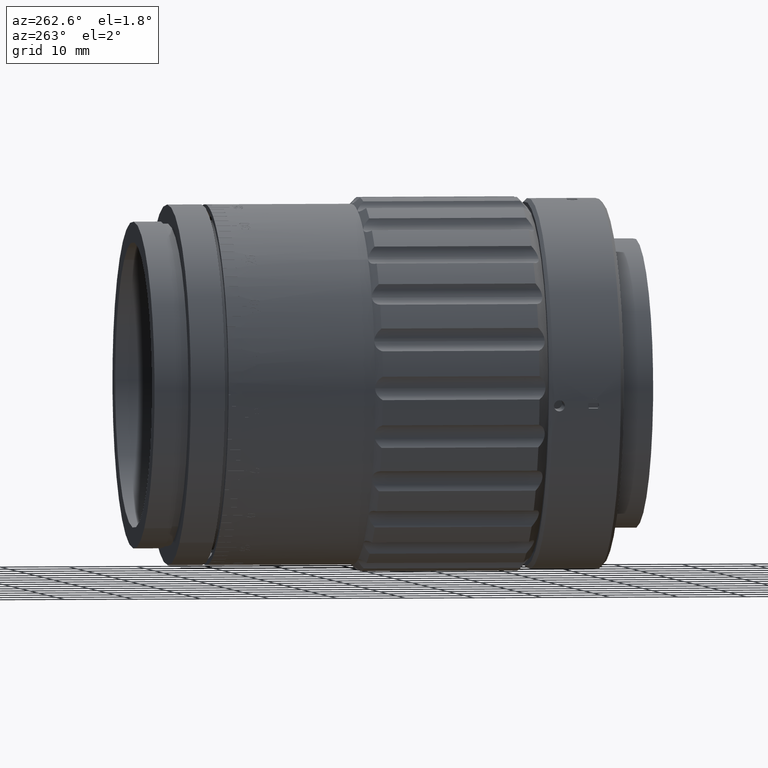
[diagram: clean part render]
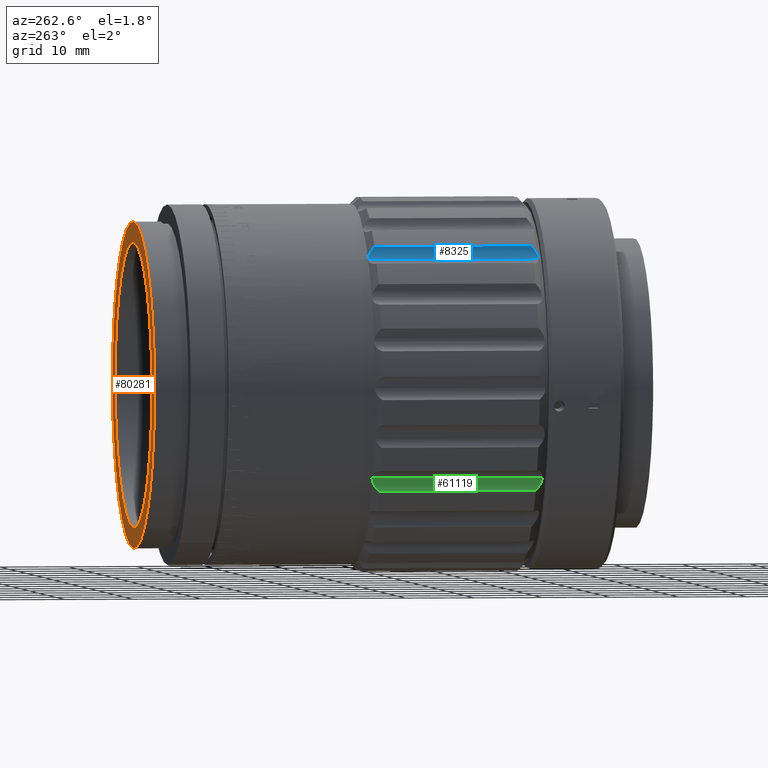
[diagram: same view with three faces highlighted in distinct colors, each labeled with its STEP entity id]
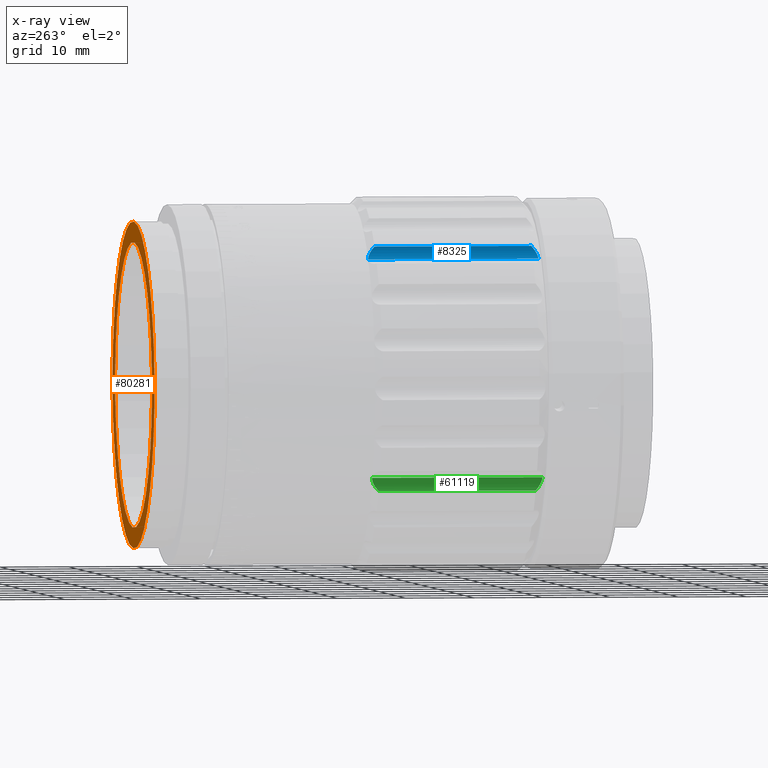
[diagram: x-ray of the same camera — body ghosted, the three highlighted faces saturated]
A machine part, auxiliary view with three faces highlighted in distinct colors.
The next image is the same camera in x-ray (body ghosted, the three faces saturated) — at least one of them is partly hidden behind the body in this view.
Their STEP definitions:

[orange] entity #80281 — the highlighted planar face has unit normal (0, -1, -0).
#255 = CARTESIAN_POINT ( 'NONE',  ( 0.0000000000000000000, 23.51240201808208500, 0.0000000000000000000 ) ) ;
#933 = AXIS2_PLACEMENT_3D ( 'NONE', #62447, #29219, #42607 ) ;
#2563 = DIRECTION ( 'NONE',  ( -0.0000000000000000000, 1.000000000000000000, -0.0000000000000000000 ) ) ;
#4936 = EDGE_CURVE ( 'NONE', #29207, #48466, #78331, .T. ) ;
#5630 = DIRECTION ( 'NONE',  ( 0.0000000000000000000, -0.0000000000000000000, -1.000000000000000000 ) ) ;
#7617 = ORIENTED_EDGE ( 'NONE', *, *, #4936, .T. ) ;
#7698 = DIRECTION ( 'NONE',  ( 0.0000000000000000000, 0.0000000000000000000, 1.000000000000000000 ) ) ;
#11805 = ORIENTED_EDGE ( 'NONE', *, *, #69631, .F. ) ;
#12351 = PLANE ( 'NONE',  #17973 ) ;
#14138 = CARTESIAN_POINT ( 'NONE',  ( 0.0000000000000000000, 23.51240201808208500, 23.80000000000000100 ) ) ;
#17973 = AXIS2_PLACEMENT_3D ( 'NONE', #19075, #39137, #5630 ) ;
#19075 = CARTESIAN_POINT ( 'NONE',  ( 20.80000000000000100, 23.51240201808208500, 0.0000000000000000000 ) ) ;
#19314 = EDGE_CURVE ( 'NONE', #48466, #29207, #26604, .T. ) ;
#24958 = CARTESIAN_POINT ( 'NONE',  ( 2.914659381970700800E-015, 23.51240201808208500, -23.80000000000000100 ) ) ;
#26604 = CIRCLE ( 'NONE', #43060, 23.80000000000000100 ) ;
#28804 = EDGE_LOOP ( 'NONE', ( #44839, #7617 ) ) ;
#29207 = VERTEX_POINT ( 'NONE', #24958 ) ;
#29219 = DIRECTION ( 'NONE',  ( -0.0000000000000000000, 1.000000000000000000, -0.0000000000000000000 ) ) ;
#30566 = EDGE_CURVE ( 'NONE', #68890, #39494, #57217, .T. ) ;
#34230 = FACE_OUTER_BOUND ( 'NONE', #28804, .T. ) ;
#39137 = DIRECTION ( 'NONE',  ( 0.0000000000000000000, -1.000000000000000000, 0.0000000000000000000 ) ) ;
#39494 = VERTEX_POINT ( 'NONE', #43313 ) ;
#42607 = DIRECTION ( 'NONE',  ( 0.0000000000000000000, 0.0000000000000000000, 1.000000000000000000 ) ) ;
#43060 = AXIS2_PLACEMENT_3D ( 'NONE', #82460, #2563, #76927 ) ;
#43313 = CARTESIAN_POINT ( 'NONE',  ( 2.547265342226494600E-015, 23.51240201808208500, -20.80000000000000100 ) ) ;
#44839 = ORIENTED_EDGE ( 'NONE', *, *, #19314, .T. ) ;
#45359 = EDGE_LOOP ( 'NONE', ( #64859, #11805 ) ) ;
#45707 = FACE_BOUND ( 'NONE', #45359, .T. ) ;
#46614 = DIRECTION ( 'NONE',  ( 0.0000000000000000000, 0.0000000000000000000, 1.000000000000000000 ) ) ;
#48466 = VERTEX_POINT ( 'NONE', #14138 ) ;
#53048 = DIRECTION ( 'NONE',  ( -0.0000000000000000000, 1.000000000000000000, -0.0000000000000000000 ) ) ;
#57217 = CIRCLE ( 'NONE', #71377, 20.80000000000000100 ) ;
#60319 = CIRCLE ( 'NONE', #933, 20.80000000000000100 ) ;
#60747 = CARTESIAN_POINT ( 'NONE',  ( 0.0000000000000000000, 23.51240201808208500, 0.0000000000000000000 ) ) ;
#62447 = CARTESIAN_POINT ( 'NONE',  ( 0.0000000000000000000, 23.51240201808208500, 0.0000000000000000000 ) ) ;
#64859 = ORIENTED_EDGE ( 'NONE', *, *, #30566, .F. ) ;
#67781 = DIRECTION ( 'NONE',  ( -0.0000000000000000000, 1.000000000000000000, -0.0000000000000000000 ) ) ;
#68890 = VERTEX_POINT ( 'NONE', #78774 ) ;
#69631 = EDGE_CURVE ( 'NONE', #39494, #68890, #60319, .T. ) ;
#71377 = AXIS2_PLACEMENT_3D ( 'NONE', #60747, #67781, #7698 ) ;
#76927 = DIRECTION ( 'NONE',  ( 0.0000000000000000000, 0.0000000000000000000, 1.000000000000000000 ) ) ;
#78331 = CIRCLE ( 'NONE', #86186, 23.80000000000000100 ) ;
#78774 = CARTESIAN_POINT ( 'NONE',  ( 0.0000000000000000000, 23.51240201808208500, 20.80000000000000100 ) ) ;
#80281 = ADVANCED_FACE ( 'NONE', ( #45707, #34230 ), #12351, .F. ) ;
#82460 = CARTESIAN_POINT ( 'NONE',  ( 0.0000000000000000000, 23.51240201808208500, 0.0000000000000000000 ) ) ;
#86186 = AXIS2_PLACEMENT_3D ( 'NONE', #255, #53048, #46614 ) ;

[blue] entity #8325 — the highlighted cylindrical surface (edge-blend (fillet) strip) has radius 2 mm, axis along (0, -1, -0).
#1863 = DIRECTION ( 'NONE',  ( -0.0000000000000000000, 1.000000000000000000, -0.0000000000000000000 ) ) ;
#1937 = FACE_OUTER_BOUND ( 'NONE', #51481, .T. ) ;
#3516 = CARTESIAN_POINT ( 'NONE',  ( -0.7385986106700723800, -28.06509218753952000, -26.38927186816556900 ) ) ;
#5706 = EDGE_CURVE ( 'NONE', #10013, #21836, #62856, .T. ) ;
#6532 = CARTESIAN_POINT ( 'NONE',  ( -0.9007847797406943700, -3.441932837596963300, -26.46214698488492400 ) ) ;
#8325 = ADVANCED_FACE ( 'NONE', ( #1937 ), #68743, .F. ) ;
#9551 = LINE ( 'NONE', #37076, #41811 ) ;
#9660 = CARTESIAN_POINT ( 'NONE',  ( 3.214687295059312000E-015, -28.21457821189758900, -26.25000000000006800 ) ) ;
#9959 = CARTESIAN_POINT ( 'NONE',  ( -0.1922822055155233600, -28.21457821189758900, -26.25000000000007500 ) ) ;
#10013 = VERTEX_POINT ( 'NONE', #79699 ) ;
#12393 = CARTESIAN_POINT ( 'NONE',  ( -1.700289969879913900, -4.214578211897617200, -27.19690265486725900 ) ) ;
#18148 = LINE ( 'NONE', #48783, #50406 ) ;
#19676 = CARTESIAN_POINT ( 'NONE',  ( -1.532917112681722500, -3.964274970068864900, -26.95633623149512900 ) ) ;
#19963 = CARTESIAN_POINT ( 'NONE',  ( -0.6530853197421538900, -3.329889188454531200, -26.35736881025967900 ) ) ;
#20536 = CARTESIAN_POINT ( 'NONE',  ( -0.7393548816748826100, -3.364387262749400700, -26.38957370959985100 ) ) ;
#21836 = VERTEX_POINT ( 'NONE', #68221 ) ;
#26370 = CARTESIAN_POINT ( 'NONE',  ( -1.700289969879913900, -4.214578211897617200, -27.19690265486725900 ) ) ;
#31222 = ORIENTED_EDGE ( 'NONE', *, *, #38163, .T. ) ;
#33329 = CARTESIAN_POINT ( 'NONE',  ( -1.601979487750316400E-016, -3.214578211897678000, -26.25000000000006800 ) ) ;
#34295 = ORIENTED_EDGE ( 'NONE', *, *, #5706, .T. ) ;
#37076 = CARTESIAN_POINT ( 'NONE',  ( 0.0000000000000000000, -2.714578211897591900, -26.25000000000006800 ) ) ;
#38163 = EDGE_CURVE ( 'NONE', #21836, #51492, #18148, .T. ) ;
#40030 = CARTESIAN_POINT ( 'NONE',  ( -0.09626177787804968100, -3.214578211897679300, -26.25000000000007100 ) ) ;
#40298 = CARTESIAN_POINT ( 'NONE',  ( -0.1939677701088345900, -3.222243727743241400, -26.25711993987787800 ) ) ;
#41811 = VECTOR ( 'NONE', #51070, 1000.000000000000000 ) ;
#43164 = CARTESIAN_POINT ( 'NONE',  ( -1.317396531725179500, -27.69496217823254400, -26.73737394783491400 ) ) ;
#48783 = CARTESIAN_POINT ( 'NONE',  ( -1.700289969879909400, -15.71457821189758900, -27.19690265486725500 ) ) ;
#50159 = CARTESIAN_POINT ( 'NONE',  ( -0.9001132230451358600, -27.98758608644783800, -26.46180726039302700 ) ) ;
#50406 = VECTOR ( 'NONE', #1863, 1000.000000000000000 ) ;
#51070 = DIRECTION ( 'NONE',  ( 0.0000000000000000000, -1.000000000000000000, 0.0000000000000000000 ) ) ;
#51481 = EDGE_LOOP ( 'NONE', ( #54724, #84042, #34295, #31222 ) ) ;
#51492 = VERTEX_POINT ( 'NONE', #12393 ) ;
#52052 = CARTESIAN_POINT ( 'NONE',  ( -1.601979487750316400E-016, -3.214578211897678000, -26.25000000000006800 ) ) ;
#53455 = CARTESIAN_POINT ( 'NONE',  ( -1.623666510132359100, -4.086325021261122200, -27.07318940018251000 ) ) ;
#54059 = AXIS2_PLACEMENT_3D ( 'NONE', #55648, #68542, #81633 ) ;
#54724 = ORIENTED_EDGE ( 'NONE', *, *, #69350, .T. ) ;
#55648 = CARTESIAN_POINT ( 'NONE',  ( 0.0000000000000000000, -2.714578211897591900, -28.25000000000007100 ) ) ;
#56252 = CARTESIAN_POINT ( 'NONE',  ( -1.623682329469385800, -27.34280492395365400, -27.07321494146812300 ) ) ;
#59865 = CARTESIAN_POINT ( 'NONE',  ( -0.9768009321269692800, -3.485196456495960800, -26.50271632194658600 ) ) ;
#61574 = EDGE_CURVE ( 'NONE', #68209, #10013, #9551, .T. ) ;
#62856 = B_SPLINE_CURVE_WITH_KNOTS ( 'NONE', 3,
 ( #9660, #9959, #70322, #83123, #3516, #50159, #69744, #63577, #43164, #77002, #56252, #69660 ),
 .UNSPECIFIED., .F., .F.,
 ( 4, 2, 2, 2, 2, 4 ),
 ( 0.002293443254639913400, 0.002866010891116027800, 0.003152294709354083200, 0.003438578527592138700, 0.004011146164068253900, 0.004583713800544370100 ),
 .UNSPECIFIED. ) ;
#63577 = CARTESIAN_POINT ( 'NONE',  ( -1.190774692519371800, -27.80398875942939800, -26.63434974526075600 ) ) ;
#66599 = CARTESIAN_POINT ( 'NONE',  ( -1.192653796823668300, -3.626543446999196200, -26.63564620627935400 ) ) ;
#68209 = VERTEX_POINT ( 'NONE', #52052 ) ;
#68221 = CARTESIAN_POINT ( 'NONE',  ( -1.700289969879911200, -27.21457821189765600, -27.19690265486725900 ) ) ;
#68542 = DIRECTION ( 'NONE',  ( 0.0000000000000000000, -1.000000000000000000, 0.0000000000000000000 ) ) ;
#68743 = CYLINDRICAL_SURFACE ( 'NONE', #54059, 2.000000000000001800 ) ;
#68910 = B_SPLINE_CURVE_WITH_KNOTS ( 'NONE', 3,
 ( #26370, #53455, #19676, #79716, #66599, #59865, #6532, #20536, #19963, #73310, #80282, #40298, #40030, #33329 ),
 .UNSPECIFIED., .F., .F.,
 ( 4, 2, 2, 2, 2, 2, 4 ),
 ( 2.979895395354491300E-007, 0.0005735843058146346000, 0.001146870622089733800, 0.001433513780227281400, 0.001720156938364828800, 0.002006800096502376800, 0.002293443254639924200 ),
 .UNSPECIFIED. ) ;
#69350 = EDGE_CURVE ( 'NONE', #51492, #68209, #68910, .T. ) ;
#69660 = CARTESIAN_POINT ( 'NONE',  ( -1.700289969879911200, -27.21457821189765600, -27.19690265486725900 ) ) ;
#69744 = CARTESIAN_POINT ( 'NONE',  ( -0.9759311860655984800, -27.94445593749853500, -26.50225120553315600 ) ) ;
#70322 = CARTESIAN_POINT ( 'NONE',  ( -0.3862801479225780900, -28.18336728292411300, -26.27896322336021100 ) ) ;
#73310 = CARTESIAN_POINT ( 'NONE',  ( -0.4754242997173764900, -3.273849528159984000, -26.30512339967833000 ) ) ;
#77002 = CARTESIAN_POINT ( 'NONE',  ( -1.532832873434893100, -27.46505317721100100, -26.95617057630945000 ) ) ;
#79699 = CARTESIAN_POINT ( 'NONE',  ( 3.214687295059312000E-015, -28.21457821189758900, -26.25000000000006800 ) ) ;
#79716 = CARTESIAN_POINT ( 'NONE',  ( -1.318340697223063600, -3.735120404520082100, -26.73825312094251000 ) ) ;
#80282 = CARTESIAN_POINT ( 'NONE',  ( -0.3837323300243200000, -3.252025529498175700, -26.28481707498578500 ) ) ;
#81633 = DIRECTION ( 'NONE',  ( 0.0000000000000000000, 0.0000000000000000000, 1.000000000000000000 ) ) ;
#83123 = CARTESIAN_POINT ( 'NONE',  ( -0.6524256805995862800, -28.09950435885614100, -26.35714757226544000 ) ) ;
#84042 = ORIENTED_EDGE ( 'NONE', *, *, #61574, .T. ) ;

[green] entity #61119 — the highlighted cylindrical surface (edge-blend (fillet) strip) has radius 2 mm, axis along (0, -1, -0).
#1413 = CARTESIAN_POINT ( 'NONE',  ( 25.62829416568200000, -28.09926723534074000, -6.190957049776919500 ) ) ;
#3161 = VECTOR ( 'NONE', #70657, 1000.000000000000000 ) ;
#3441 = VERTEX_POINT ( 'NONE', #58437 ) ;
#4784 = EDGE_CURVE ( 'NONE', #77682, #3441, #75233, .T. ) ;
#11365 = CARTESIAN_POINT ( 'NONE',  ( 25.68124262155243500, -3.364064236255757100, -6.116614672561725600 ) ) ;
#14855 = CARTESIAN_POINT ( 'NONE',  ( 25.41263282693801500, -28.20691269605203300, -6.608484231365476800 ) ) ;
#16233 = CARTESIAN_POINT ( 'NONE',  ( 25.35555294008817700, -3.214578211897677600, -6.793999933940936500 ) ) ;
#18649 = CARTESIAN_POINT ( 'NONE',  ( 25.79310948796995400, -3.441570337347433600, -5.979377078098024400 ) ) ;
#19978 = DIRECTION ( 'NONE',  ( 0.0000000000000000000, -1.000000000000000000, 0.0000000000000000000 ) ) ;
#20928 = B_SPLINE_CURVE_WITH_KNOTS ( 'NONE', 3,
 ( #64999, #51862, #45710, #51282, #11365, #18649, #65286, #24784, #31458, #25345, #78689, #72003 ),
 .UNSPECIFIED., .F., .F.,
 ( 4, 2, 2, 2, 2, 4 ),
 ( 0.002293443254639925900, 0.002866010891116044200, 0.003152294709354099700, 0.003438578527592155200, 0.004011146164068267800, 0.004583713800544380500 ),
 .UNSPECIFIED. ) ;
#21116 = FACE_OUTER_BOUND ( 'NONE', #33041, .T. ) ;
#21570 = CARTESIAN_POINT ( 'NONE',  ( 26.71025809580777700, -27.21457821189765600, -5.396722380791422000 ) ) ;
#22138 = CARTESIAN_POINT ( 'NONE',  ( 26.43456949145854300, -27.46488145372640600, -5.496128974198046400 ) ) ;
#23982 = CARTESIAN_POINT ( 'NONE',  ( 26.71025809580777400, -15.71457821189758900, -5.396722380791423700 ) ) ;
#24784 = CARTESIAN_POINT ( 'NONE',  ( 26.03500145421320500, -3.625167664365868300, -5.743276939198813700 ) ) ;
#24889 = EDGE_CURVE ( 'NONE', #30590, #3441, #67829, .T. ) ;
#25345 = CARTESIAN_POINT ( 'NONE',  ( 26.43438767811499400, -3.964103246584266900, -5.496167468345171300 ) ) ;
#25782 = EDGE_CURVE ( 'NONE', #80724, #30590, #55333, .T. ) ;
#28383 = CARTESIAN_POINT ( 'NONE',  ( 26.71025809580777700, -27.21457821189765600, -5.396722380791422000 ) ) ;
#28542 = CARTESIAN_POINT ( 'NONE',  ( 25.48850088724458000, -28.17713089429709700, -6.432354288089431500 ) ) ;
#30590 = VERTEX_POINT ( 'NONE', #28383 ) ;
#31458 = CARTESIAN_POINT ( 'NONE',  ( 26.16728733572479000, -3.734194245562724800, -5.647634260270391900 ) ) ;
#33041 = EDGE_LOOP ( 'NONE', ( #50040, #48589, #36456, #85954 ) ) ;
#34307 = EDGE_CURVE ( 'NONE', #77682, #80724, #20928, .T. ) ;
#35203 = CARTESIAN_POINT ( 'NONE',  ( 25.85247284668944400, -27.94395996729930700, -5.915890483584274100 ) ) ;
#36456 = ORIENTED_EDGE ( 'NONE', *, *, #25782, .T. ) ;
#38234 = AXIS2_PLACEMENT_3D ( 'NONE', #38592, #19978, #46178 ) ;
#38592 = CARTESIAN_POINT ( 'NONE',  ( 27.28740459266632000, -2.714578211897591900, -7.311638024145959300 ) ) ;
#45710 = CARTESIAN_POINT ( 'NONE',  ( 25.48350592457169800, -3.245789140871165700, -6.428378196692915700 ) ) ;
#45748 = CARTESIAN_POINT ( 'NONE',  ( 25.35555294008817700, -2.714578211897591900, -6.793999933940936500 ) ) ;
#46178 = DIRECTION ( 'NONE',  ( -0.9659258262890708700, 0.0000000000000000000, 0.2588190451025114100 ) ) ;
#48049 = CARTESIAN_POINT ( 'NONE',  ( 26.57092865736917600, -27.34283140253414900, -5.438715613017172300 ) ) ;
#48589 = ORIENTED_EDGE ( 'NONE', *, *, #34307, .T. ) ;
#48627 = CARTESIAN_POINT ( 'NONE',  ( 26.03674008737553100, -27.80261297679607700, -5.741797412623846200 ) ) ;
#48905 = CARTESIAN_POINT ( 'NONE',  ( 25.38046732151844900, -28.21457821189758900, -6.701018196604028500 ) ) ;
#50040 = ORIENTED_EDGE ( 'NONE', *, *, #4784, .F. ) ;
#50436 = DIRECTION ( 'NONE',  ( 0.0000000000000000000, -1.000000000000000000, 0.0000000000000000000 ) ) ;
#51282 = CARTESIAN_POINT ( 'NONE',  ( 25.62790973901661600, -3.329652064939127700, -6.191536951654347500 ) ) ;
#51862 = CARTESIAN_POINT ( 'NONE',  ( 25.40531923690991400, -3.214578211897677100, -6.608269585697667200 ) ) ;
#54486 = CARTESIAN_POINT ( 'NONE',  ( 25.53184691874164300, -28.15530689563528800, -6.349042310066058900 ) ) ;
#55318 = CARTESIAN_POINT ( 'NONE',  ( 26.16838091974778300, -27.69403601927519500, -5.646949813175882400 ) ) ;
#55333 = LINE ( 'NONE', #23982, #3161 ) ;
#57483 = VECTOR ( 'NONE', #50436, 1000.000000000000000 ) ;
#58437 = CARTESIAN_POINT ( 'NONE',  ( 25.35555294008817700, -28.21457821189758900, -6.793999933940936500 ) ) ;
#61119 = ADVANCED_FACE ( 'NONE', ( #21116 ), #76312, .F. ) ;
#64999 = CARTESIAN_POINT ( 'NONE',  ( 25.35555294008817700, -3.214578211897677600, -6.793999933940936500 ) ) ;
#65286 = CARTESIAN_POINT ( 'NONE',  ( 25.85179847188839400, -3.484700486296729700, -5.916610212781281000 ) ) ;
#67829 = B_SPLINE_CURVE_WITH_KNOTS ( 'NONE', 3,
 ( #21570, #48049, #22138, #55318, #48627, #35203, #81889, #68217, #1413, #54486, #28542, #14855, #48905, #67933 ),
 .UNSPECIFIED., .F., .F.,
 ( 4, 2, 2, 2, 2, 2, 4 ),
 ( 2.979895395331365200E-007, 0.0005735843058146322200, 0.001146870622089731400, 0.001433513780227277500, 0.001720156938364823800, 0.002006800096502369500, 0.002293443254639916000 ),
 .UNSPECIFIED. ) ;
#67933 = CARTESIAN_POINT ( 'NONE',  ( 25.35555294008817700, -28.21457821189758900, -6.793999933940936500 ) ) ;
#68217 = CARTESIAN_POINT ( 'NONE',  ( 25.68172991532855700, -28.06476916104586600, -6.115962293178297300 ) ) ;
#70231 = CARTESIAN_POINT ( 'NONE',  ( 26.71025809580777400, -4.214578211897617200, -5.396722380791427300 ) ) ;
#70657 = DIRECTION ( 'NONE',  ( 0.0000000000000000000, -1.000000000000000000, 0.0000000000000000000 ) ) ;
#72003 = CARTESIAN_POINT ( 'NONE',  ( 26.71025809580777400, -4.214578211897617200, -5.396722380791427300 ) ) ;
#75233 = LINE ( 'NONE', #45748, #57483 ) ;
#76312 = CYLINDRICAL_SURFACE ( 'NONE', #38234, 2.000000000000000900 ) ;
#77682 = VERTEX_POINT ( 'NONE', #16233 ) ;
#78689 = CARTESIAN_POINT ( 'NONE',  ( 26.57095742270228900, -4.086351499841624600, -5.438706943282136700 ) ) ;
#80724 = VERTEX_POINT ( 'NONE', #70231 ) ;
#81889 = CARTESIAN_POINT ( 'NONE',  ( 25.79361144829318800, -27.98722358619831100, -5.978816331310564000 ) ) ;
#85954 = ORIENTED_EDGE ( 'NONE', *, *, #24889, .T. ) ;